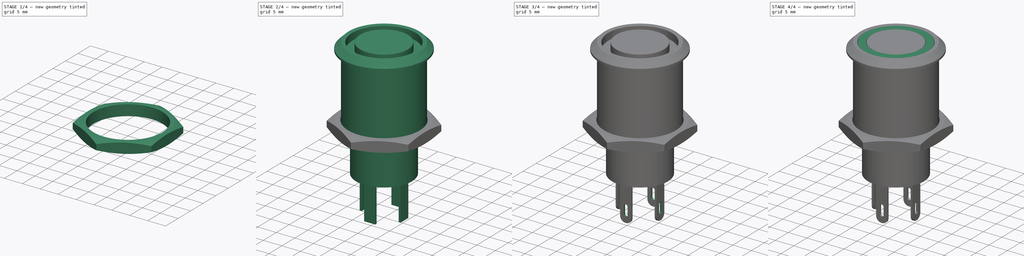
[diagram: build sequence overview — one tinted view per stage of 4, left to right]
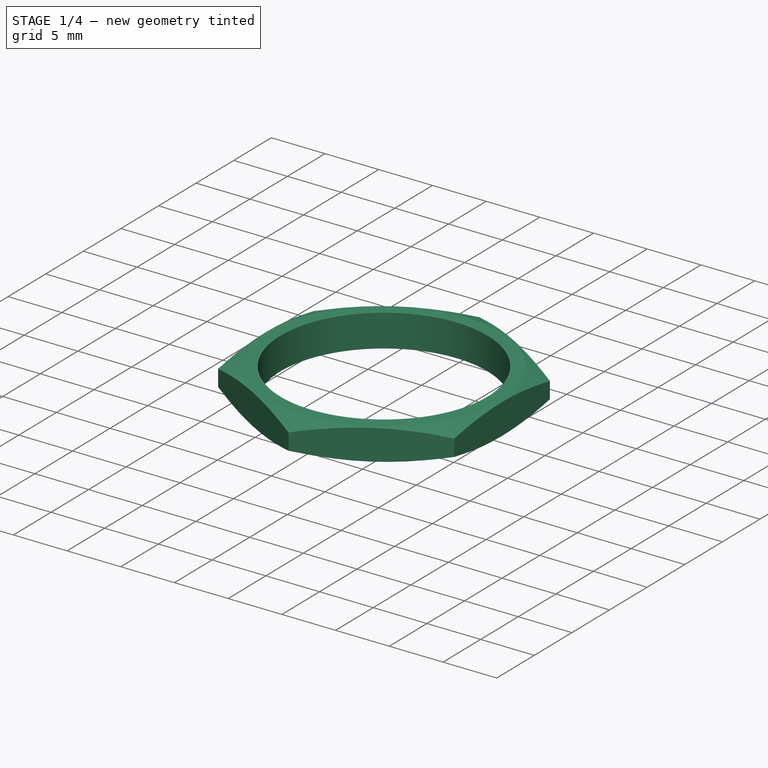
[diagram: stage 1 of 4 — iso view after this stage's code; geometry added in this stage tinted green]
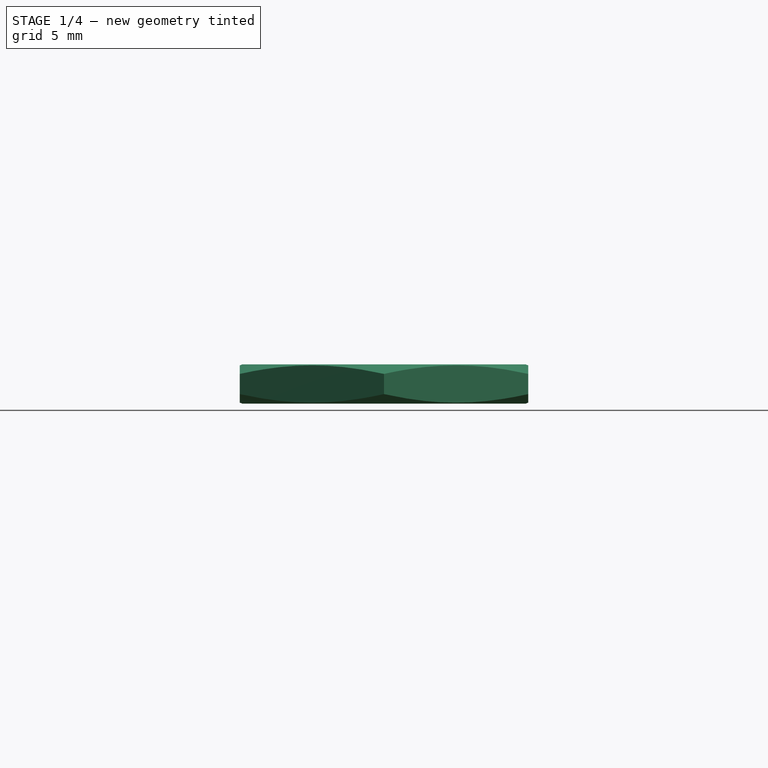
[diagram: stage 1 of 4 — front view after this stage's code; geometry added in this stage tinted green]
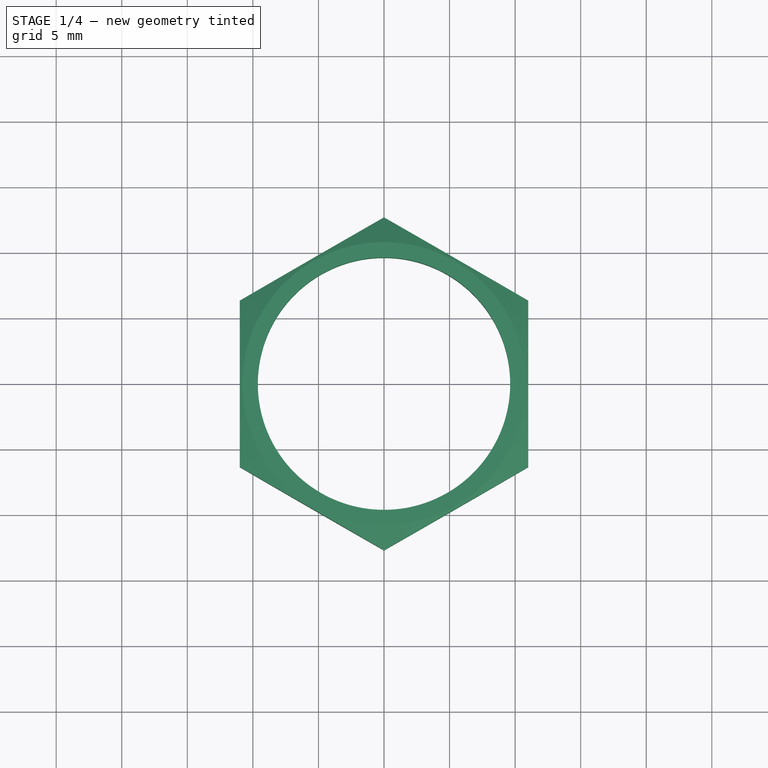
[diagram: stage 1 of 4 — top view after this stage's code; geometry added in this stage tinted green]
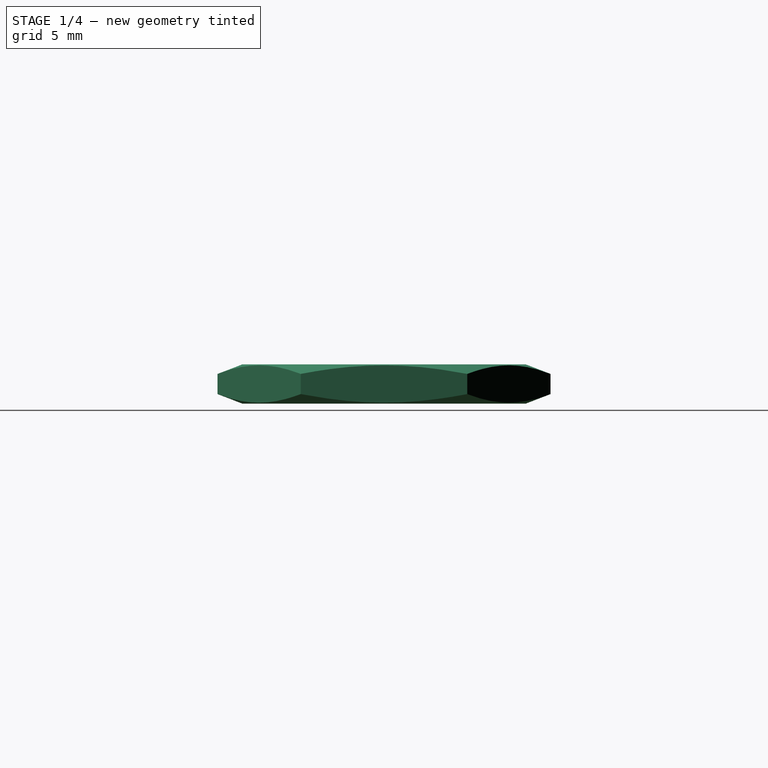
[diagram: stage 1 of 4 — right view after this stage's code; geometry added in this stage tinted green]
FCSTD DOCUMENT  (FreeCAD 0.18R4 (GitTag))
Label: Push Button
License: CreativeCommons Attribution-NonCommercial
LicenseURL: http://creativecommons.org/licenses/by-nc/4.0/
objects: Sketcher::SketchObject×7, PartDesign::Fillet×3, PartDesign::Body×3, PartDesign::Revolution×2, PartDesign::Pad×2, PartDesign::Pocket×2, PartDesign::Groove×1, App::Part×1
note: 27 computed .brp shape members not serialized (recipe doc carries the construction recipe); baked Part::Feature solids carry a one-line shape summary decoded from their .brp

FEATURE [PartDesign::Body] Body  label="Push Button Case"
  Group = -> [Sketch,Revolution,Fillet,Sketch002,Pad,Fillet002,Sketch003,Pocket,Sketch005,Pocket001]
  Origin = -> Origin001
  Tip = -> Pocket001
FEATURE [Sketcher::SketchObject] Sketch006
  MapMode = 5
  Support = -> [XY_Plane003]
  sketch-geometry (8):
    g0: Circle CenterX=0 CenterY=0 CenterZ=0 NormalX=0 NormalY=0 NormalZ=1 AngleXU=0 Radius=9.625
    g1: LineSegment StartX=0 StartY=12.7 StartZ=0 EndX=-10.9985 EndY=6.35 EndZ=0
    g2: LineSegment StartX=-10.9985 StartY=6.35 StartZ=0 EndX=-10.9985 EndY=-6.35 EndZ=0
    g3: LineSegment StartX=-10.9985 StartY=-6.35 StartZ=0 EndX=0 EndY=-12.7 EndZ=0
    g4: LineSegment StartX=0 StartY=-12.7 StartZ=0 EndX=10.9985 EndY=-6.35 EndZ=0
    g5: LineSegment StartX=10.9985 StartY=-6.35 StartZ=0 EndX=10.9985 EndY=6.35 EndZ=0
    g6: LineSegment StartX=10.9985 StartY=6.35 StartZ=0 EndX=0 EndY=12.7 EndZ=0
    g7: Circle [constr] CenterX=0 CenterY=0 CenterZ=0 NormalX=0 NormalY=0 NormalZ=1 AngleXU=0 Radius=12.7
  constraints (18):
    c: Coincident(g0,g-1)
    c: Coincident(g1,g2)
    c: Coincident(g2,g3)
    c: Coincident(g3,g4)
    c: Coincident(g4,g5)
    c: Coincident(g5,g6)
    c: Coincident(g6,g1)
    c: Equal(g1, g2-g6) x5
    c: PointOnObject(g1,g7)
    c: PointOnObject(g2,g7)
    c: PointOnObject(g3,g7)
    c: PointOnObject(g4,g7)
    c: PointOnObject(g5,g7)
    c: PointOnObject(g6,g7)
    c: Coincident(g7,g0)
    c: PointOnObject(g1,g-2)
    c: DistanceY(g3,g1) = 25.4
    c: Radius(g0) = 9.625
FEATURE [PartDesign::Pad] Pad001
  Length = 3
  Length2 = 100
  Profile = -> Sketch006
  Type = 0
FEATURE [Sketcher::SketchObject] Sketch007
  MapMode = 5
  Placement = pos=(0,0,0) rot=(0.57735,0.57735,0.57735;2.0944rad)
  Support = -> [YZ_Plane003]
  sketch-geometry (7):
    g0: LineSegment StartX=9.5 StartY=3.5 StartZ=0 EndX=12.75 EndY=2.25 EndZ=0
    g1: LineSegment StartX=12.75 StartY=2.25 StartZ=0 EndX=12.75 EndY=0.75 EndZ=0
    g2: LineSegment StartX=12.75 StartY=0.75 StartZ=0 EndX=9.5 EndY=-0.5 EndZ=0
    g3: LineSegment StartX=9.5 StartY=-0.5 StartZ=0 EndX=14.5 EndY=-0.5 EndZ=0
    g4: LineSegment StartX=14.5 StartY=-0.5 StartZ=0 EndX=14.5 EndY=3.5 EndZ=0
    g5: LineSegment StartX=14.5 StartY=3.5 StartZ=0 EndX=9.5 EndY=3.5 EndZ=0
    g6: LineSegment [constr] StartX=12.75 StartY=1.5 StartZ=0 EndX=14.5 EndY=1.5 EndZ=0
  constraints (20):
    c: Coincident(g0,g1)
    c: Vertical(g1)
    c: Coincident(g1,g2)
    c: Coincident(g2,g3)
    c: Coincident(g3,g4)
    c: Vertical(g4)
    c: Coincident(g4,g5)
    c: Coincident(g5,g0)
    c: Horizontal(g5)
    c: DistanceY(g4,g4) = 4
    c: PointOnObject(g6,g1)
    c: Symmetric(g4,g3,g6)
    c: Symmetric(g0,g1,g6)
    c: Vertical(g2,g0)
    c: DistanceX(g-1,g2) = 9.5
    c: DistanceX(g2,g1) = 3.25
    c: DistanceX(g5,g5) = 5
    c: DistanceY(g1,g1) = 1.5
    c: Horizontal(g3)
    c: DistanceY(g2,g-1) = 0.5
FEATURE [PartDesign::Groove] Groove
  Angle = 360
  Axis = (-2e-16,3e-16,1)
  Base = (0,0,0)
  BaseFeature = -> Pad001
  Profile = -> Sketch007
  ReferenceAxis = -> Sketch007 [V_Axis]
FEATURE [PartDesign::Body] Body002  label="Push Button Nut"
  Group = -> [Sketch006,Pad001,Sketch007,Groove]
  Origin = -> Origin003
  Placement = pos=(0,0,15) rot=(0,0,1;0rad)
  Tip = -> Groove
FEATURE [App::Part] Part  label="Push Button with LED - 19mm"
  Group = -> [Body,Body001,Body002]
  Origin = -> Origin
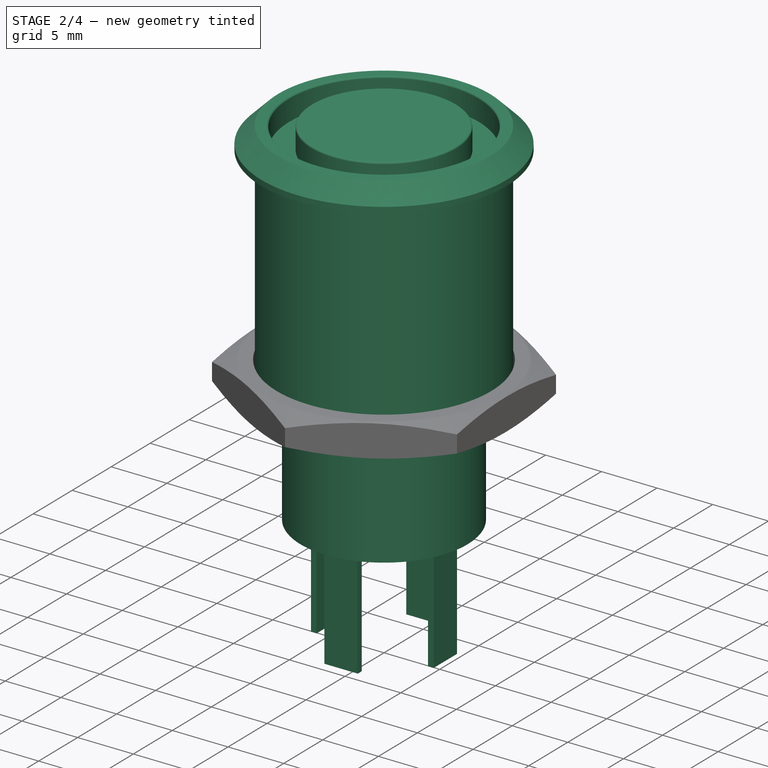
[diagram: stage 2 of 4 — iso view after this stage's code; geometry added in this stage tinted green]
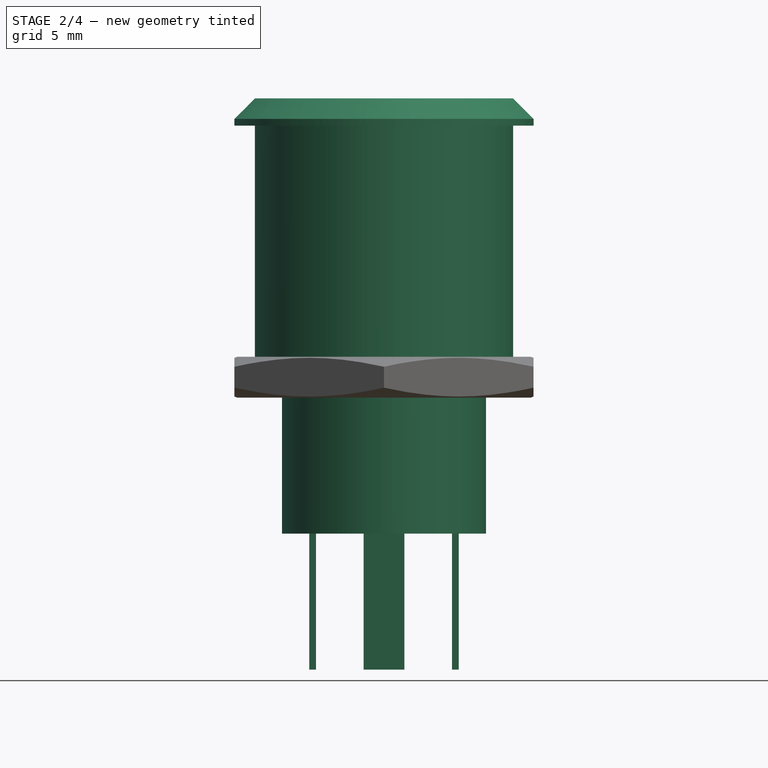
[diagram: stage 2 of 4 — front view after this stage's code; geometry added in this stage tinted green]
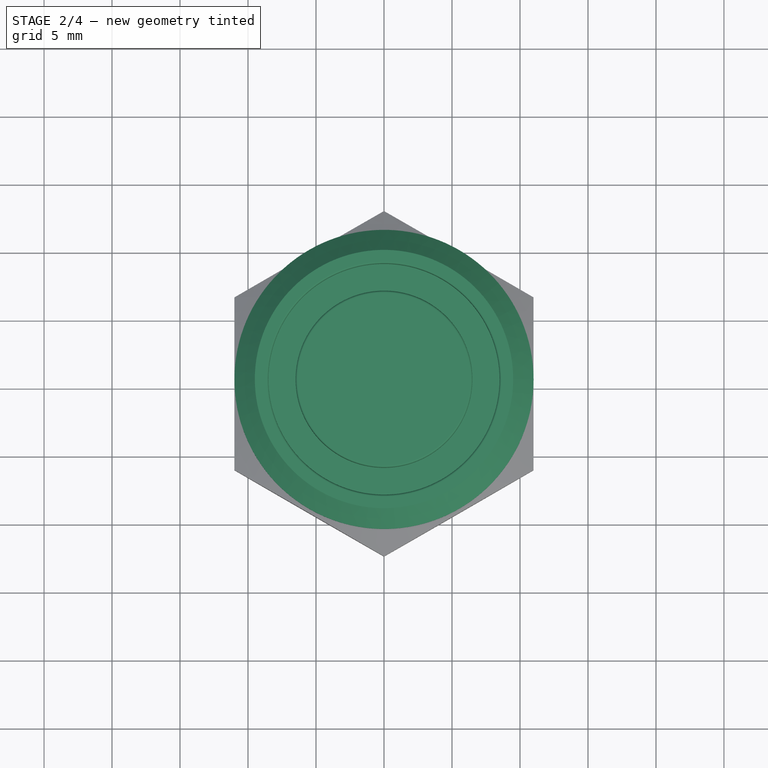
[diagram: stage 2 of 4 — top view after this stage's code; geometry added in this stage tinted green]
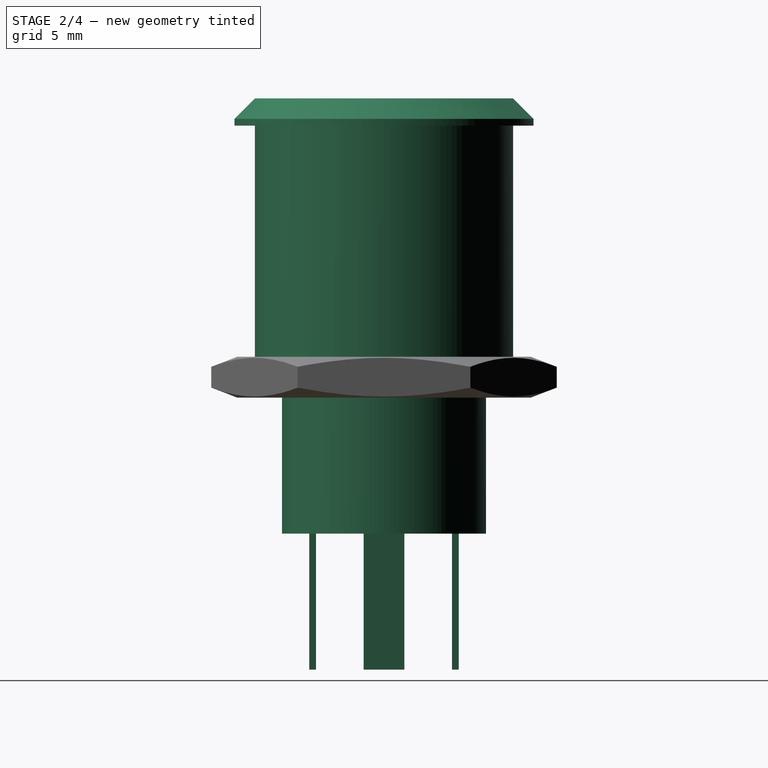
[diagram: stage 2 of 4 — right view after this stage's code; geometry added in this stage tinted green]
FEATURE [Sketcher::SketchObject] Sketch
  MapMode = 5
  Placement = pos=(0,0,0) rot=(1,0,0;1.5708rad)
  Support = -> [XZ_Plane001]
  sketch-geometry (14):
    g0: LineSegment StartX=0 StartY=22 StartZ=0 EndX=6.5 EndY=22 EndZ=0
    g1: LineSegment StartX=6.5 StartY=22 StartZ=0 EndX=6.5 EndY=20 EndZ=0
    g2: LineSegment StartX=6.5 StartY=20 StartZ=0 EndX=8.5 EndY=20 EndZ=0
    g3: LineSegment StartX=8.5 StartY=20 StartZ=0 EndX=8.5 EndY=22 EndZ=0
    g4: LineSegment StartX=8.5 StartY=22 StartZ=0 EndX=9.5 EndY=22 EndZ=0
    g5: LineSegment StartX=9.5 StartY=22 StartZ=0 EndX=11 EndY=20.5 EndZ=0
    g6: LineSegment StartX=11 StartY=20.5 StartZ=0 EndX=11 EndY=20 EndZ=0
    g7: LineSegment StartX=11 StartY=20 StartZ=0 EndX=9.5 EndY=20 EndZ=0
    g8: LineSegment StartX=9.5 StartY=20 StartZ=0 EndX=9.5 EndY=0 EndZ=0
    g9: LineSegment StartX=0 StartY=0 StartZ=0 EndX=0 EndY=22 EndZ=0
    g10: LineSegment StartX=9.5 StartY=0 StartZ=0 EndX=7.5 EndY=0 EndZ=0
    g11: LineSegment StartX=7.5 StartY=0 StartZ=0 EndX=7.5 EndY=-10 EndZ=0
    g12: LineSegment StartX=7.5 StartY=-10 StartZ=0 EndX=0 EndY=-10 EndZ=0
    g13: LineSegment StartX=0 StartY=-10 StartZ=0 EndX=0 EndY=0 EndZ=0
  constraints (41):
    c: PointOnObject(g0,g-2)
    c: Horizontal(g0)
    c: Coincident(g0,g1)
    c: Coincident(g1,g2)
    c: Horizontal(g2)
    c: Coincident(g2,g3)
    c: Coincident(g3,g4)
    c: Coincident(g4,g5)
    c: Coincident(g5,g6)
    c: Vertical(g6)
    c: Coincident(g6,g7)
    c: Horizontal(g7)
    c: Coincident(g7,g8)
    c: Vertical(g8)
    c: Coincident(g9,g0)
    c: Horizontal(g0,g3)
    c: Horizontal(g4)
    c: Vertical(g4,g7)
    c: DistanceY(g7,g4) = 2
    c: DistanceX(g0,g5) = 11
    c: DistanceX(g0,g4) = 9.5
    c: Vertical(g3)
    c: Vertical(g1)
    c: DistanceY(g6,g6) = 0.5
    c: DistanceY(g8,g8) = 20
    c: Horizontal(g2,g7)
    c: DistanceX(g4,g4) = 1
    c: DistanceX(g2,g2) = 2
    c: Coincident(g8,g10)
    c: Horizontal(g10)
    c: Coincident(g10,g11)
    c: Vertical(g11)
    c: Coincident(g11,g12)
    c: PointOnObject(g12,g-2)
    c: Horizontal(g12)
    c: Coincident(g12,g13)
    c: Coincident(g13,g9)
    c: DistanceX(g12,g12) = 7.5
    c: DistanceY(g11,g11) = 10
    c: PointOnObject(g10,g-1)
    c: Coincident(g9,g-1)
FEATURE [PartDesign::Revolution] Revolution
  Angle = 360
  Axis = (0,2e-16,1)
  Base = (0,0,0)
  Placement = pos=(0,0,0) rot=(1,0,0;1.5708rad)
  Profile = -> Sketch
  ReferenceAxis = -> Sketch [V_Axis]
  Reversed = true
FEATURE [PartDesign::Fillet] Fillet
  Base = -> Revolution [Edge1,Edge5]
  BaseFeature = -> Revolution
  Placement = pos=(0,0,0) rot=(1,0,0;1.5708rad)
  Radius = 0.15
FEATURE [PartDesign::Body] Body001  label="Push Button LED"
  Group = -> [Sketch001,Revolution001,Fillet001]
  Origin = -> Origin002
  Tip = -> Fillet001
FEATURE [Sketcher::SketchObject] Sketch002
  MapMode = 5
  Placement = pos=(0,-6.7e-15,-10) rot=(1,0,0;3.14159rad)
  Support = -> [Fillet]
  sketch-geometry (16):
    g0: LineSegment StartX=-1.5 StartY=5 StartZ=0 EndX=1.5 EndY=5 EndZ=0
    g1: LineSegment StartX=1.5 StartY=5 StartZ=0 EndX=1.5 EndY=5.5 EndZ=0
    g2: LineSegment StartX=1.5 StartY=5.5 StartZ=0 EndX=-1.5 EndY=5.5 EndZ=0
    g3: LineSegment StartX=-1.5 StartY=5.5 StartZ=0 EndX=-1.5 EndY=5 EndZ=0
    g4: LineSegment StartX=5 StartY=-1.5 StartZ=0 EndX=5.5 EndY=-1.5 EndZ=0
    g5: LineSegment StartX=5.5 StartY=-1.5 StartZ=0 EndX=5.5 EndY=1.5 EndZ=0
    g6: LineSegment StartX=5.5 StartY=1.5 StartZ=0 EndX=5 EndY=1.5 EndZ=0
    g7: LineSegment StartX=5 StartY=1.5 StartZ=0 EndX=5 EndY=-1.5 EndZ=0
    g8: LineSegment StartX=1.5 StartY=-5 StartZ=0 EndX=-1.5 EndY=-5 EndZ=0
    g9: LineSegment StartX=-1.5 StartY=-5 StartZ=0 EndX=-1.5 EndY=-5.5 EndZ=0
    g10: LineSegment StartX=-1.5 StartY=-5.5 StartZ=0 EndX=1.5 EndY=-5.5 EndZ=0
    g11: LineSegment StartX=1.5 StartY=-5.5 StartZ=0 EndX=1.5 EndY=-5 EndZ=0
    g12: LineSegment StartX=-5.5 StartY=-1.5 StartZ=0 EndX=-5 EndY=-1.5 EndZ=0
    g13: LineSegment StartX=-5 StartY=-1.5 StartZ=0 EndX=-5 EndY=1.5 EndZ=0
    g14: LineSegment StartX=-5 StartY=1.5 StartZ=0 EndX=-5.5 EndY=1.5 EndZ=0
    g15: LineSegment StartX=-5.5 StartY=1.5 StartZ=0 EndX=-5.5 EndY=-1.5 EndZ=0
  constraints (44):
    c: Coincident(g0,g1)
    c: Coincident(g1,g2)
    c: Coincident(g2,g3)
    c: Coincident(g3,g0)
    c: Horizontal(g0)
    c: Vertical(g1)
    c: Vertical(g3)
    c: Coincident(g4,g5)
    c: Coincident(g5,g6)
    c: Coincident(g6,g7)
    c: Coincident(g7,g4)
    c: Horizontal(g4)
    c: Horizontal(g6)
    c: Vertical(g7)
    c: Coincident(g8,g9)
    c: Coincident(g9,g10)
    c: Coincident(g10,g11)
    c: Coincident(g11,g8)
    c: Horizontal(g8)
    c: Horizontal(g10)
    c: Vertical(g9)
    c: Vertical(g11)
    c: Coincident(g12,g13)
    c: Coincident(g13,g14)
    c: Coincident(g14,g15)
    c: Coincident(g15,g12)
    c: Horizontal(g12)
    c: Horizontal(g14)
    c: Vertical(g13)
    c: Vertical(g15)
    c: Symmetric(g13,g6,g-2)
    c: Symmetric(g0,g8,g-1)
    c: Equal(g2,g15)
    c: Equal(g15,g5)
    c: Equal(g5,g10)
    c: Equal(g11,g4)
    c: Equal(g4,g1)
    c: Equal(g1,g14)
    c: DistanceX(g13,g6) = 10
    c: DistanceY(g8,g0) = 10
    c: Symmetric(g1,g2,g-2)
    c: Symmetric(g5,g4,g-1)
    c: DistanceX(g2,g2) = 3
    c: DistanceY(g3,g3) = 0.5
FEATURE [PartDesign::Pad] Pad
  BaseFeature = -> Fillet
  Length = 10
  Length2 = 100
  Placement = pos=(0,0,0) rot=(1,0,0;1.5708rad)
  Profile = -> Sketch002
  Type = 0
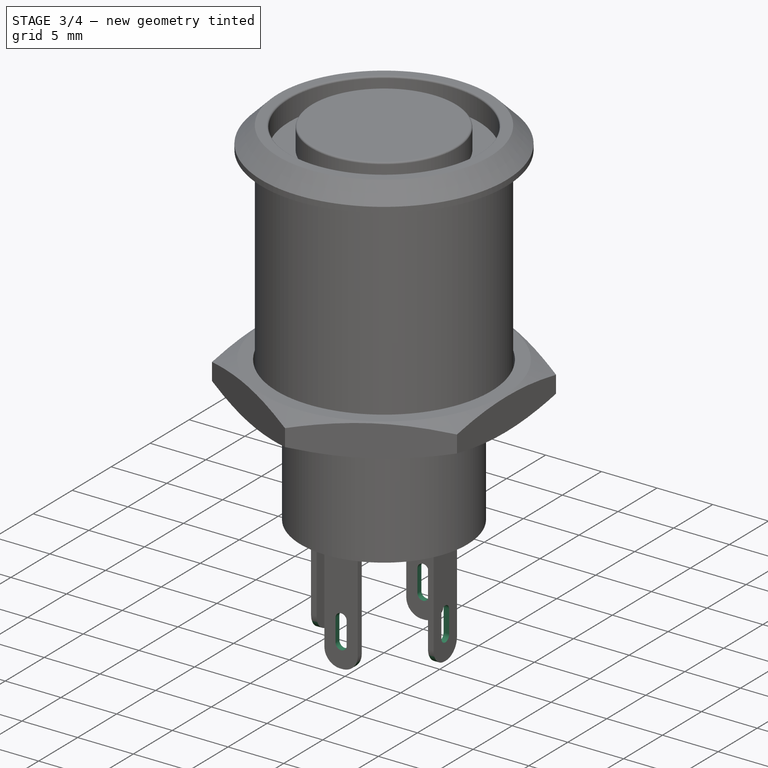
[diagram: stage 3 of 4 — iso view after this stage's code; geometry added in this stage tinted green]
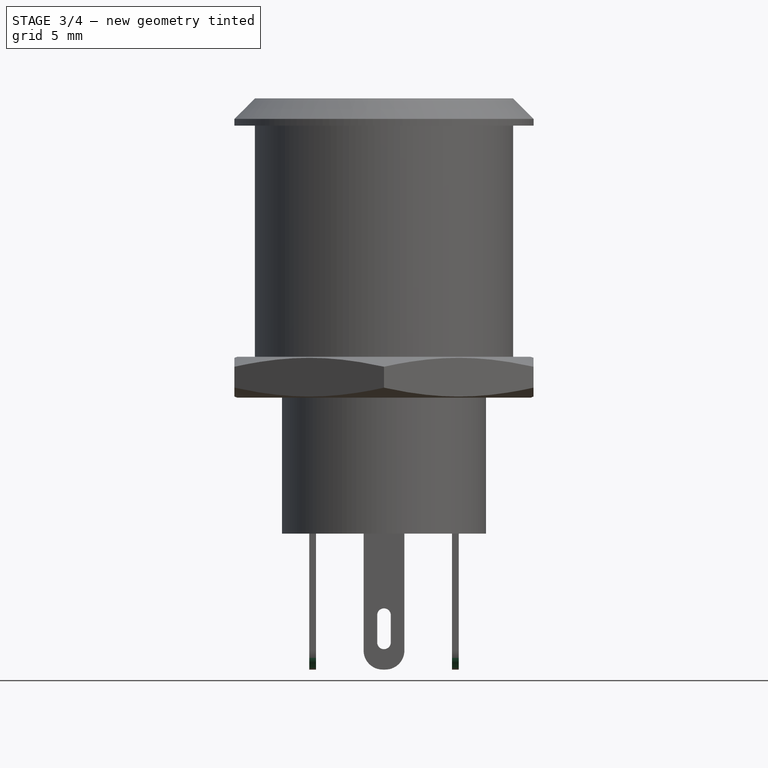
[diagram: stage 3 of 4 — front view after this stage's code; geometry added in this stage tinted green]
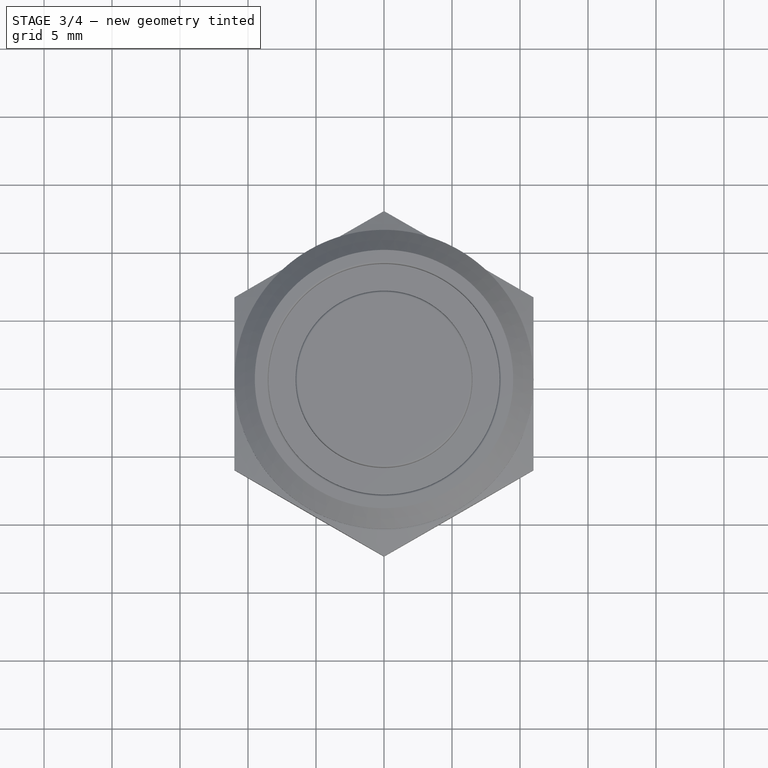
[diagram: stage 3 of 4 — top view after this stage's code; geometry added in this stage tinted green]
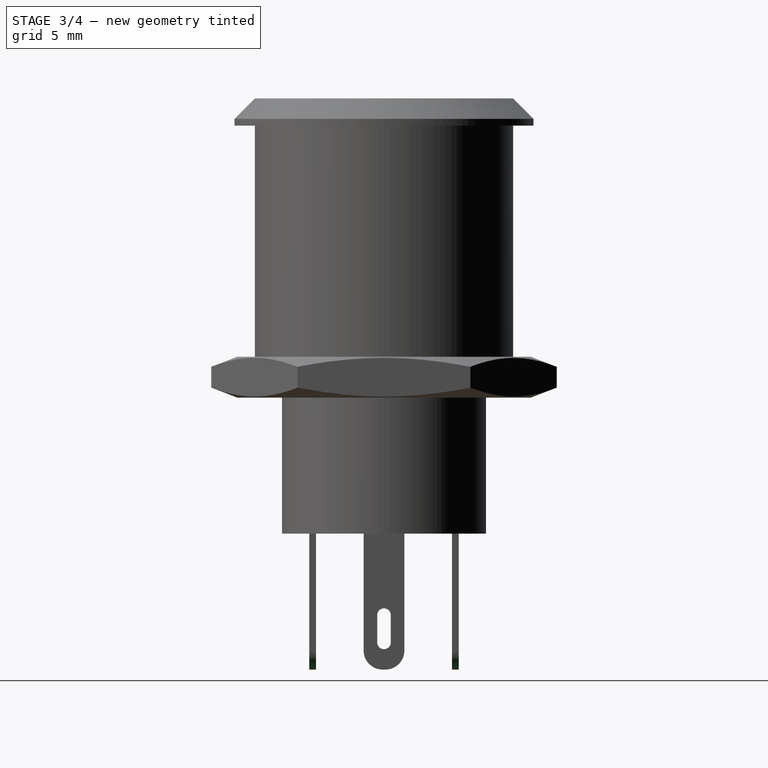
[diagram: stage 3 of 4 — right view after this stage's code; geometry added in this stage tinted green]
FEATURE [PartDesign::Fillet] Fillet002
  Base = -> Pad [Edge53,Edge50,Edge44,Edge40,Edge66,Edge69,Edge56,Edge60]
  BaseFeature = -> Pad
  Placement = pos=(0,0,0) rot=(1,0,0;1.5708rad)
  Radius = 1.4
FEATURE [Sketcher::SketchObject] Sketch003
  MapMode = 5
  Placement = pos=(5.5,0,0) rot=(0.707107,0,0.707107;3.14159rad)
  Support = -> [Fillet002]
  sketch-geometry (4):
    g0: ArcOfCircle CenterX=-18 CenterY=0 CenterZ=0 NormalX=0 NormalY=0 NormalZ=1 AngleXU=0 Radius=0.5 StartAngle=1.5708 EndAngle=4.71239
    g1: ArcOfCircle CenterX=-16 CenterY=0 CenterZ=0 NormalX=0 NormalY=0 NormalZ=1 AngleXU=0 Radius=0.5 StartAngle=4.71239 EndAngle=7.85398
    g2: LineSegment StartX=-18 StartY=-0.5 StartZ=0 EndX=-16 EndY=-0.5 EndZ=0
    g3: LineSegment StartX=-18 StartY=0.5 StartZ=0 EndX=-16 EndY=0.5 EndZ=0
  constraints (10):
    c: Tangent(g0,g3) = 1.5708
    c: Tangent(g0,g2) = -1.5708
    c: Tangent(g2,g1) = -1.5708
    c: Tangent(g3,g1) = 1.5708
    c: Horizontal(g2)
    c: Equal(g0,g1)
    c: PointOnObject(g0,g-1)
    c: DistanceX(g1,g-1) = 16
    c: DistanceX(g3,g3) = 2
    c: Radius(g0) = 0.5
FEATURE [PartDesign::Pocket] Pocket
  BaseFeature = -> Fillet002
  Length = 5
  Length2 = 100
  Placement = pos=(0,0,0) rot=(1,0,0;1.5708rad)
  Profile = -> Sketch003
  Type = 1
FEATURE [Sketcher::SketchObject] Sketch005
  MapMode = 5
  Placement = pos=(0,-5.5,8.5e-15) rot=(1,0,0;1.5708rad)
  Support = -> [Pocket]
  sketch-geometry (4):
    g0: ArcOfCircle CenterX=0 CenterY=-18 CenterZ=0 NormalX=0 NormalY=0 NormalZ=1 AngleXU=0 Radius=0.5 StartAngle=3.14159 EndAngle=6.28319
    g1: ArcOfCircle CenterX=-1e-16 CenterY=-16 CenterZ=0 NormalX=0 NormalY=0 NormalZ=1 AngleXU=0 Radius=0.5 StartAngle=-1.8e-15 EndAngle=3.14159
    g2: LineSegment StartX=0.5 StartY=-18 StartZ=0 EndX=0.5 EndY=-16 EndZ=0
    g3: LineSegment StartX=-0.5 StartY=-18 StartZ=0 EndX=-0.5 EndY=-16 EndZ=0
  constraints (10):
    c: Tangent(g0,g3) = 1.5708
    c: Tangent(g0,g2) = -1.5708
    c: Tangent(g2,g1) = -1.5708
    c: Tangent(g3,g1) = 1.5708
    c: Vertical(g2)
    c: Equal(g0,g1)
    c: PointOnObject(g0,g-2)
    c: DistanceY(g1,g-1) = 16
    c: DistanceY(g2,g2) = 2
    c: Radius(g1) = 0.5
FEATURE [PartDesign::Pocket] Pocket001
  BaseFeature = -> Pocket
  Length = 5
  Length2 = 100
  Placement = pos=(0,0,0) rot=(1,0,0;1.5708rad)
  Profile = -> Sketch005
  Type = 1
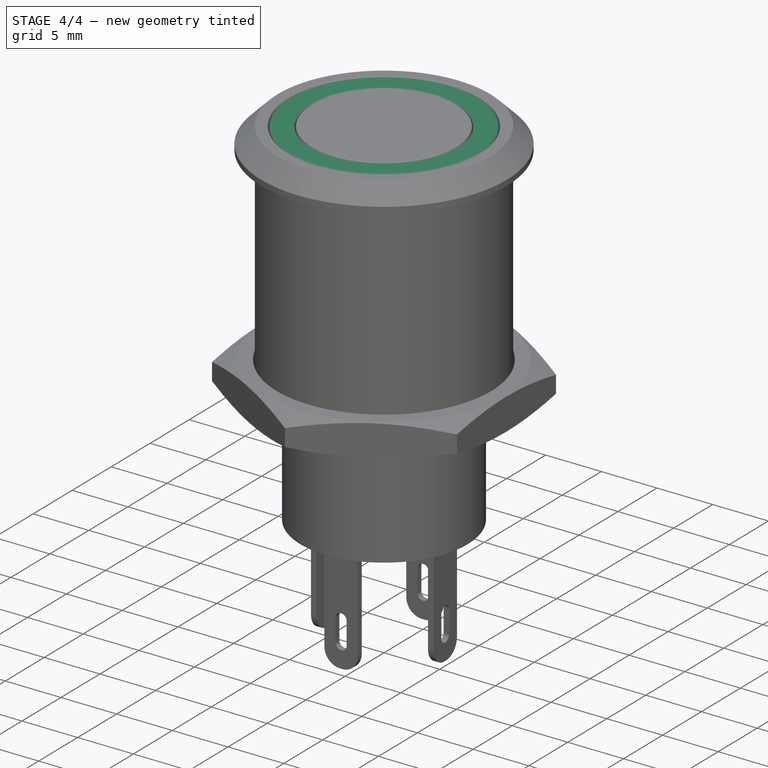
[diagram: stage 4 of 4 — iso view after this stage's code; geometry added in this stage tinted green]
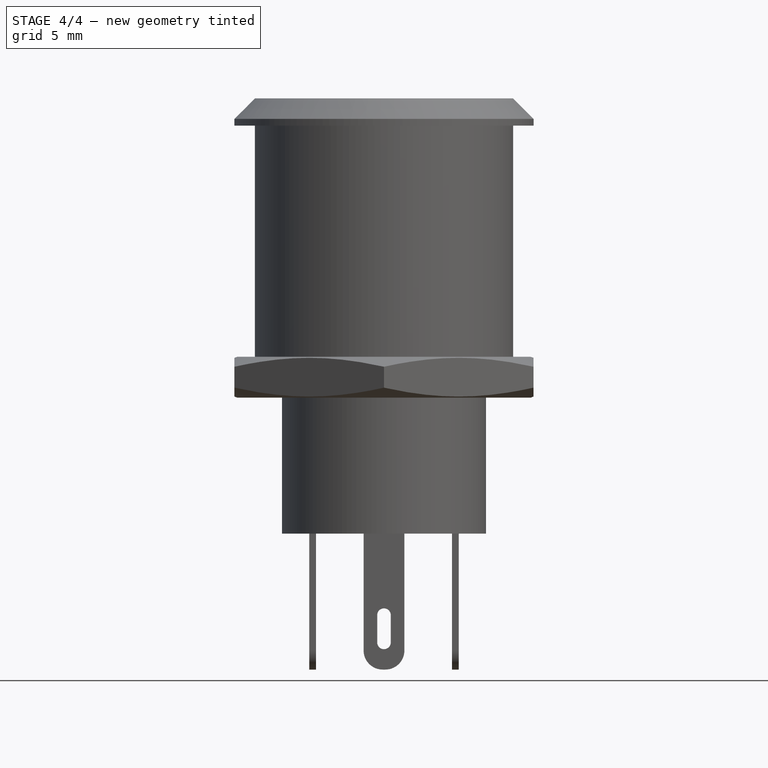
[diagram: stage 4 of 4 — front view after this stage's code; geometry added in this stage tinted green]
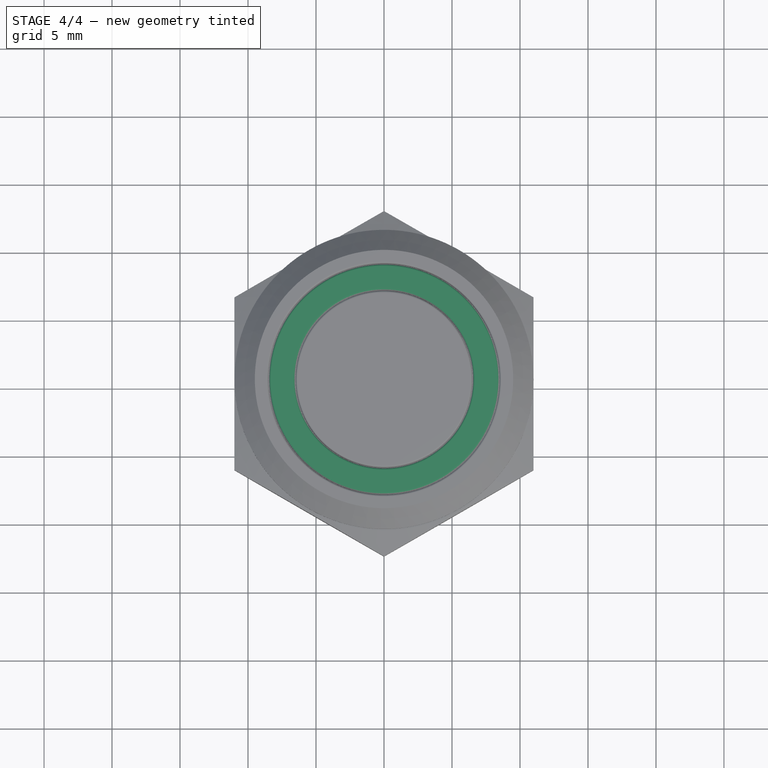
[diagram: stage 4 of 4 — top view after this stage's code; geometry added in this stage tinted green]
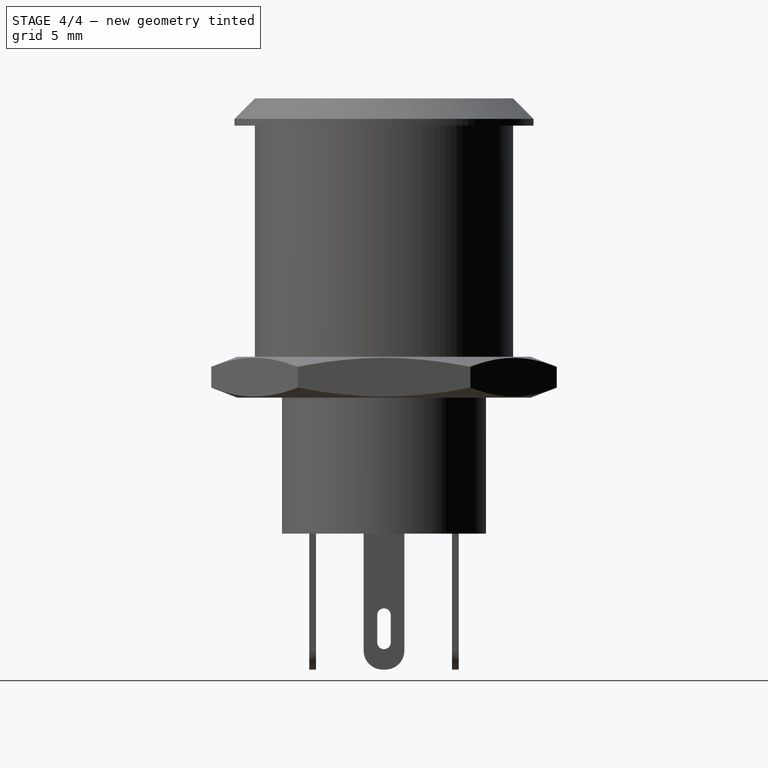
[diagram: stage 4 of 4 — right view after this stage's code; geometry added in this stage tinted green]
FEATURE [Sketcher::SketchObject] Sketch001
  MapMode = 5
  Placement = pos=(0,0,0) rot=(1,0,0;1.5708rad)
  Support = -> [XZ_Plane002]
  sketch-geometry (4):
    g0: LineSegment StartX=6.55 StartY=22 StartZ=0 EndX=8.45 EndY=22 EndZ=0
    g1: LineSegment StartX=8.45 StartY=22 StartZ=0 EndX=8.45 EndY=20 EndZ=0
    g2: LineSegment StartX=8.45 StartY=20 StartZ=0 EndX=6.55 EndY=20 EndZ=0
    g3: LineSegment StartX=6.55 StartY=20 StartZ=0 EndX=6.55 EndY=22 EndZ=0
  constraints (12):
    c: Coincident(g0,g1)
    c: Coincident(g1,g2)
    c: Coincident(g2,g3)
    c: Coincident(g3,g0)
    c: Horizontal(g0)
    c: Horizontal(g2)
    c: Vertical(g1)
    c: Vertical(g3)
    c: DistanceX(g0,g0) = 1.9
    c: DistanceX(g-1,g0) = 6.55
    c: DistanceY(g3,g3) = 2
    c: DistanceY(g-1,g2) = 20
FEATURE [PartDesign::Revolution] Revolution001
  Angle = 360
  Axis = (0,2e-16,1)
  Base = (0,0,0)
  Placement = pos=(0,0,0) rot=(1,0,0;1.5708rad)
  Profile = -> Sketch001
  ReferenceAxis = -> Sketch001 [V_Axis]
  Reversed = true
FEATURE [PartDesign::Fillet] Fillet001
  Base = -> Revolution001 [Edge2,Edge1]
  BaseFeature = -> Revolution001
  Placement = pos=(0,0,0) rot=(1,0,0;1.5708rad)
  Radius = 0.15
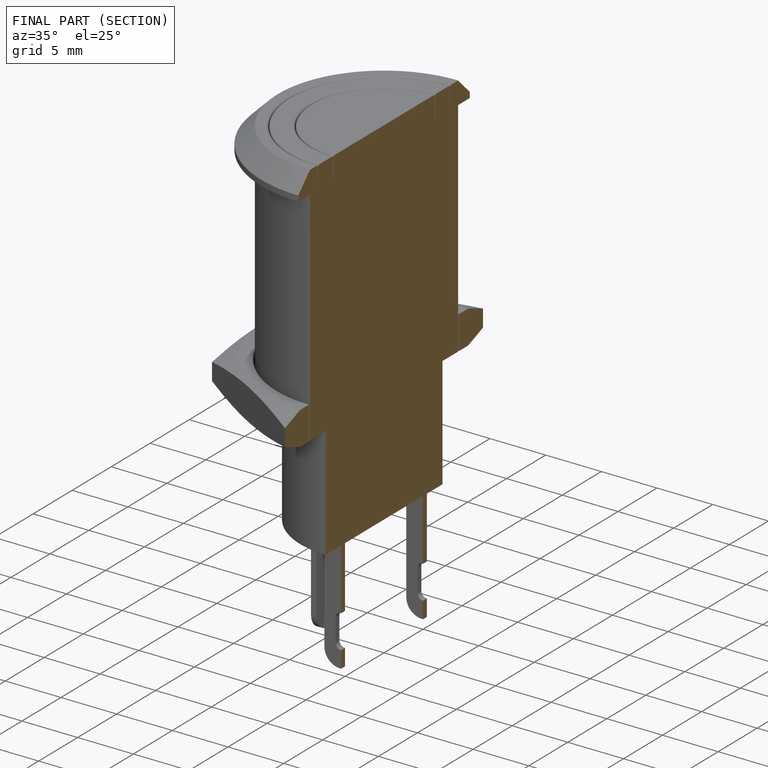
[diagram: finished part — half-section view (interior)]
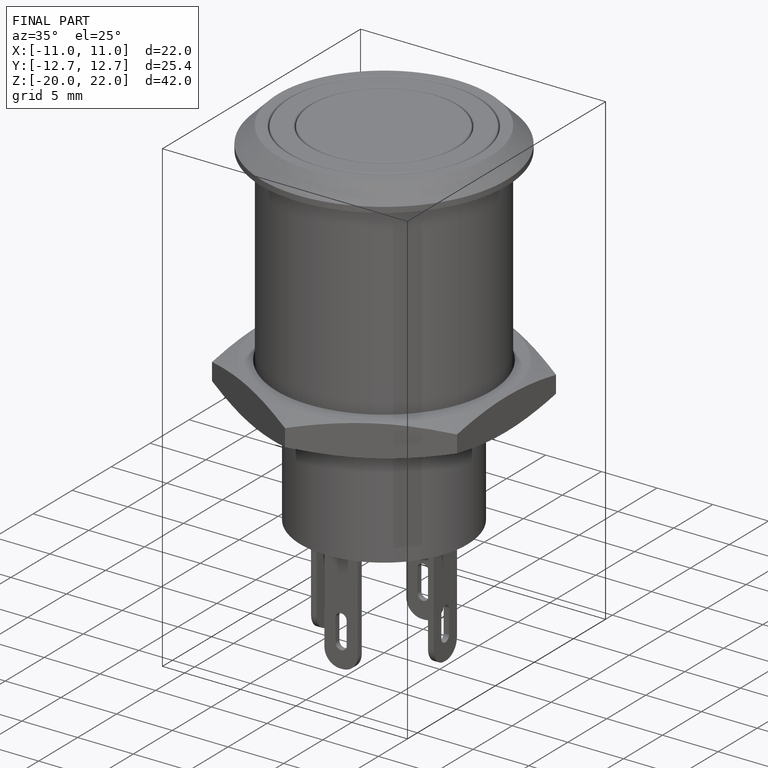
[diagram: finished part — iso view with bounding-box wireframe]
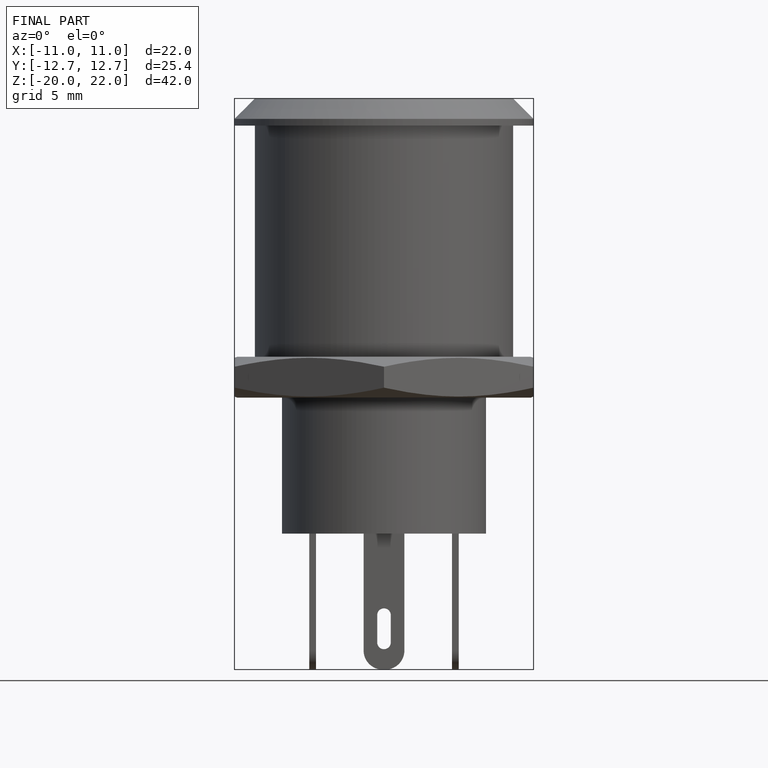
[diagram: finished part — front view with bounding-box wireframe]
